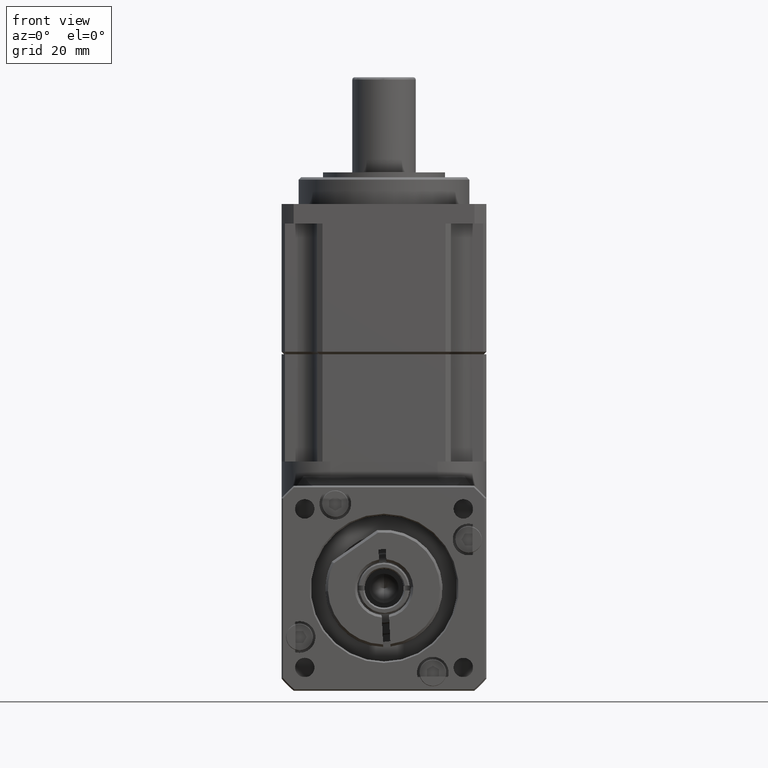
[diagram: clean part render]
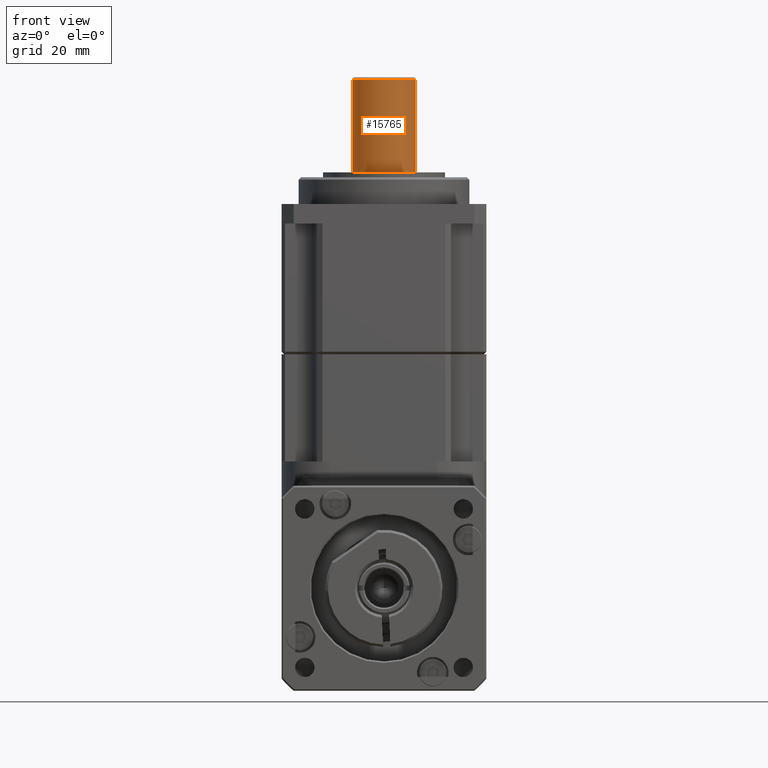
[diagram: same view with one face highlighted and labeled with its STEP entity id]
A machine part, front view. The second image highlights one B-rep face of the part: STEP entity #15765.
In plain terms, the highlighted cylindrical surface (edge-blend (fillet) strip) has radius 6.5 mm, axis along (0, 0, 1).
Its self-contained STEP definition (entity closure, byte-faithful):
#234 = CARTESIAN_POINT ( 'NONE',  ( 0.0000000000000000000, -6.500000000000001800, -0.5000000000000035500 ) ) ;
#762 = EDGE_CURVE ( 'NONE', #6222, #9588, #17359, .T. ) ;
#1697 = FACE_OUTER_BOUND ( 'NONE', #8529, .T. ) ;
#1741 = DIRECTION ( 'NONE',  ( -0.0000000000000000000, -0.0000000000000000000, 1.000000000000000000 ) ) ;
#1917 = CYLINDRICAL_SURFACE ( 'NONE', #4942, 6.500000000000002700 ) ;
#2065 = DIRECTION ( 'NONE',  ( 1.000000000000000000, 0.0000000000000000000, 0.0000000000000000000 ) ) ;
#2428 = DIRECTION ( 'NONE',  ( 1.000000000000000000, 0.0000000000000000000, 0.0000000000000000000 ) ) ;
#2591 = AXIS2_PLACEMENT_3D ( 'NONE', #4696, #6203, #12296 ) ;
#2675 = ORIENTED_EDGE ( 'NONE', *, *, #13230, .T. ) ;
#2767 = EDGE_CURVE ( 'NONE', #17642, #19289, #2979, .T. ) ;
#2979 = CIRCLE ( 'NONE', #11417, 6.500000000000002700 ) ;
#3461 = DIRECTION ( 'NONE',  ( 0.0000000000000000000, 0.0000000000000000000, -1.000000000000000000 ) ) ;
#3676 = CARTESIAN_POINT ( 'NONE',  ( 6.500000000000002700, 0.0000000000000000000, -19.49999999999998900 ) ) ;
#3771 = EDGE_CURVE ( 'NONE', #6222, #6462, #4609, .T. ) ;
#4609 = LINE ( 'NONE', #12235, #6498 ) ;
#4696 = CARTESIAN_POINT ( 'NONE',  ( 0.0000000000000000000, 0.0000000000000000000, -19.49999999999998900 ) ) ;
#4906 = CARTESIAN_POINT ( 'NONE',  ( 0.0000000000000000000, 0.0000000000000000000, -0.5000000000000035500 ) ) ;
#4942 = AXIS2_PLACEMENT_3D ( 'NONE', #18682, #6896, #2428 ) ;
#6203 = DIRECTION ( 'NONE',  ( -0.0000000000000000000, -0.0000000000000000000, 1.000000000000000000 ) ) ;
#6222 = VERTEX_POINT ( 'NONE', #12429 ) ;
#6392 = CARTESIAN_POINT ( 'NONE',  ( 6.500000000000002700, 0.0000000000000000000, -0.5000000000000035500 ) ) ;
#6462 = VERTEX_POINT ( 'NONE', #10311 ) ;
#6498 = VECTOR ( 'NONE', #1741, 1000.000000000000000 ) ;
#6896 = DIRECTION ( 'NONE',  ( -0.0000000000000000000, -0.0000000000000000000, 1.000000000000000000 ) ) ;
#6899 = ORIENTED_EDGE ( 'NONE', *, *, #3771, .F. ) ;
#7129 = AXIS2_PLACEMENT_3D ( 'NONE', #15090, #16667, #16809 ) ;
#8157 = VECTOR ( 'NONE', #14289, 1000.000000000000000 ) ;
#8529 = EDGE_LOOP ( 'NONE', ( #6899, #15991, #2675, #11840, #11788 ) ) ;
#9588 = VERTEX_POINT ( 'NONE', #3676 ) ;
#10311 = CARTESIAN_POINT ( 'NONE',  ( -6.500000000000002700, 7.960204194457798400E-016, -0.5000000000000035500 ) ) ;
#11417 = AXIS2_PLACEMENT_3D ( 'NONE', #4906, #3461, #2065 ) ;
#11788 = ORIENTED_EDGE ( 'NONE', *, *, #13010, .T. ) ;
#11840 = ORIENTED_EDGE ( 'NONE', *, *, #2767, .T. ) ;
#12235 = CARTESIAN_POINT ( 'NONE',  ( -6.500000000000002700, 7.960204194457798400E-016, 0.0000000000000000000 ) ) ;
#12296 = DIRECTION ( 'NONE',  ( 1.000000000000000000, 0.0000000000000000000, 0.0000000000000000000 ) ) ;
#12429 = CARTESIAN_POINT ( 'NONE',  ( -6.500000000000002700, 7.960204194457798400E-016, -19.49999999999998900 ) ) ;
#13010 = EDGE_CURVE ( 'NONE', #19289, #6462, #18547, .T. ) ;
#13230 = EDGE_CURVE ( 'NONE', #9588, #17642, #15177, .T. ) ;
#14289 = DIRECTION ( 'NONE',  ( -0.0000000000000000000, -0.0000000000000000000, 1.000000000000000000 ) ) ;
#15090 = CARTESIAN_POINT ( 'NONE',  ( 0.0000000000000000000, 0.0000000000000000000, -0.5000000000000035500 ) ) ;
#15177 = LINE ( 'NONE', #17503, #8157 ) ;
#15765 = ADVANCED_FACE ( 'NONE', ( #1697 ), #1917, .T. ) ;
#15991 = ORIENTED_EDGE ( 'NONE', *, *, #762, .T. ) ;
#16667 = DIRECTION ( 'NONE',  ( 0.0000000000000000000, 0.0000000000000000000, -1.000000000000000000 ) ) ;
#16809 = DIRECTION ( 'NONE',  ( 1.000000000000000000, 0.0000000000000000000, 0.0000000000000000000 ) ) ;
#17359 = CIRCLE ( 'NONE', #2591, 6.500000000000002700 ) ;
#17503 = CARTESIAN_POINT ( 'NONE',  ( 6.500000000000002700, 0.0000000000000000000, 0.0000000000000000000 ) ) ;
#17642 = VERTEX_POINT ( 'NONE', #6392 ) ;
#18547 = CIRCLE ( 'NONE', #7129, 6.500000000000002700 ) ;
#18682 = CARTESIAN_POINT ( 'NONE',  ( 0.0000000000000000000, 0.0000000000000000000, 0.0000000000000000000 ) ) ;
#19289 = VERTEX_POINT ( 'NONE', #234 ) ;